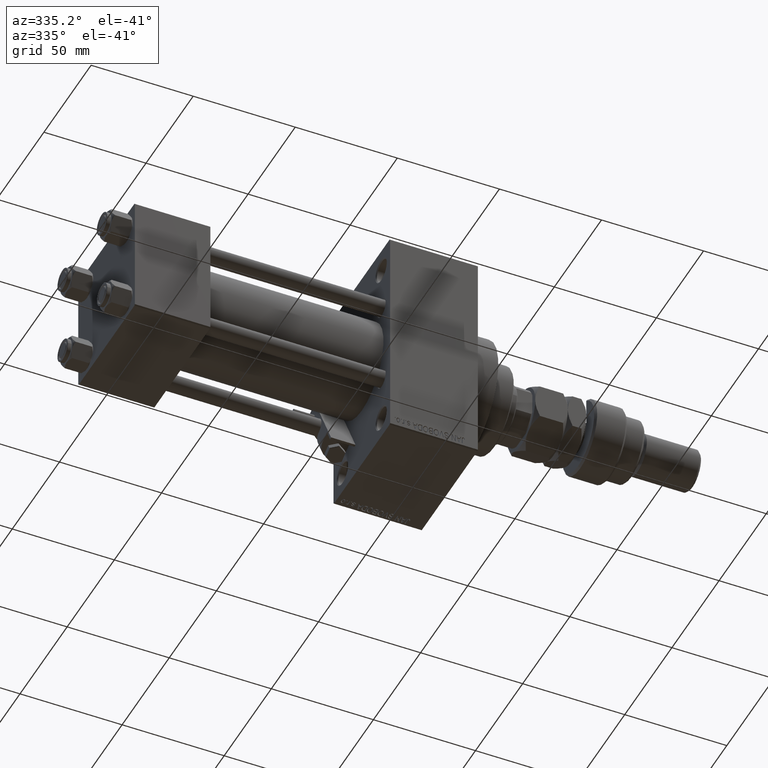
[diagram: clean part render]
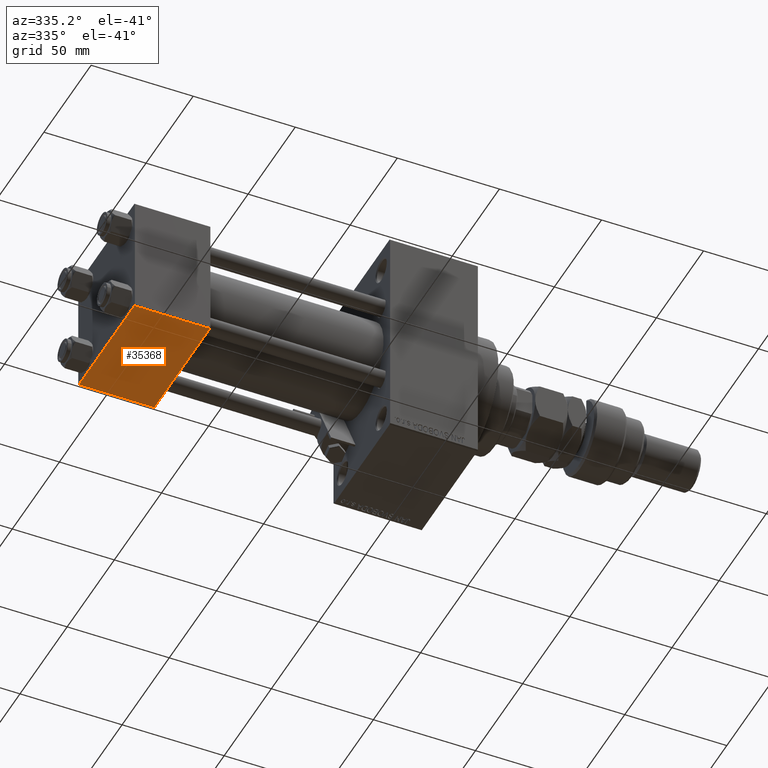
[diagram: same view with one face highlighted and labeled with its STEP entity id]
A machine part, auxiliary view. The second image highlights one B-rep face of the part: STEP entity #35368.
In plain terms, the highlighted planar face has unit normal (0, 0, -1).
Its self-contained STEP definition (entity closure, byte-faithful):
#679 = LINE ( 'NONE', #17195, #23436 ) ;
#862 = ORIENTED_EDGE ( 'NONE', *, *, #40699, .T. ) ;
#1149 = EDGE_CURVE ( 'NONE', #45618, #47961, #5643, .T. ) ;
#3265 = CARTESIAN_POINT ( 'NONE',  ( 0.000000000000000000, -29.50000000000001066, -30.00000000000000711 ) ) ;
#3311 = CARTESIAN_POINT ( 'NONE',  ( 0.000000000000000000, 29.49999999999997868, -30.00000000000000000 ) ) ;
#4596 = ORIENTED_EDGE ( 'NONE', *, *, #1149, .T. ) ;
#5643 = LINE ( 'NONE', #47270, #41090 ) ;
#6851 = VECTOR ( 'NONE', #47843, 1000.000000000000000 ) ;
#7831 = LINE ( 'NONE', #35681, #6851 ) ;
#8743 = VERTEX_POINT ( 'NONE', #12536 ) ;
#9736 = ORIENTED_EDGE ( 'NONE', *, *, #11257, .T. ) ;
#11124 = LINE ( 'NONE', #3265, #46380 ) ;
#11171 = PLANE ( 'NONE',  #39402 ) ;
#11257 = EDGE_CURVE ( 'NONE', #39750, #45618, #7831, .T. ) ;
#12536 = CARTESIAN_POINT ( 'NONE',  ( 0.000000000000000000, -29.50000000000000000, -30.00000000000000711 ) ) ;
#17195 = CARTESIAN_POINT ( 'NONE',  ( 0.000000000000000000, 29.99999999999999289, -30.00000000000000000 ) ) ;
#23344 = DIRECTION ( 'NONE',  ( 0.000000000000000000, 1.156482317317871725E-16, -1.000000000000000000 ) ) ;
#23436 = VECTOR ( 'NONE', #34388, 1000.000000000000000 ) ;
#25690 = DIRECTION ( 'NONE',  ( 0.000000000000000000, -1.000000000000000000, -1.156482317317871725E-16 ) ) ;
#27183 = CARTESIAN_POINT ( 'NONE',  ( 37.00000000000000000, -29.50000000000000000, -30.00000000000000711 ) ) ;
#28193 = ORIENTED_EDGE ( 'NONE', *, *, #52112, .F. ) ;
#33958 = DIRECTION ( 'NONE',  ( 0.000000000000000000, 1.000000000000000000, 1.156482317317871725E-16 ) ) ;
#34388 = DIRECTION ( 'NONE',  ( 0.000000000000000000, -1.000000000000000000, -1.156482317317871725E-16 ) ) ;
#35368 = ADVANCED_FACE ( 'NONE', ( #39264 ), #11171, .T. ) ;
#35681 = CARTESIAN_POINT ( 'NONE',  ( 37.00000000000000000, 29.49999999999997868, -30.00000000000000000 ) ) ;
#39264 = FACE_OUTER_BOUND ( 'NONE', #46713, .T. ) ;
#39402 = AXIS2_PLACEMENT_3D ( 'NONE', #40072, #23344, #33958 ) ;
#39750 = VERTEX_POINT ( 'NONE', #3311 ) ;
#40072 = CARTESIAN_POINT ( 'NONE',  ( 37.00000000000000000, 29.99999999999999289, -30.00000000000000000 ) ) ;
#40206 = CARTESIAN_POINT ( 'NONE',  ( 37.00000000000000000, 29.49999999999997868, -30.00000000000000000 ) ) ;
#40699 = EDGE_CURVE ( 'NONE', #47961, #8743, #11124, .T. ) ;
#41090 = VECTOR ( 'NONE', #25690, 1000.000000000000000 ) ;
#45618 = VERTEX_POINT ( 'NONE', #40206 ) ;
#46380 = VECTOR ( 'NONE', #48144, 1000.000000000000000 ) ;
#46713 = EDGE_LOOP ( 'NONE', ( #28193, #9736, #4596, #862 ) ) ;
#47270 = CARTESIAN_POINT ( 'NONE',  ( 37.00000000000000000, 29.99999999999999289, -30.00000000000000000 ) ) ;
#47843 = DIRECTION ( 'NONE',  ( 1.000000000000000000, 0.000000000000000000, 0.000000000000000000 ) ) ;
#47961 = VERTEX_POINT ( 'NONE', #27183 ) ;
#48144 = DIRECTION ( 'NONE',  ( -1.000000000000000000, 0.000000000000000000, 0.000000000000000000 ) ) ;
#52112 = EDGE_CURVE ( 'NONE', #39750, #8743, #679, .T. ) ;